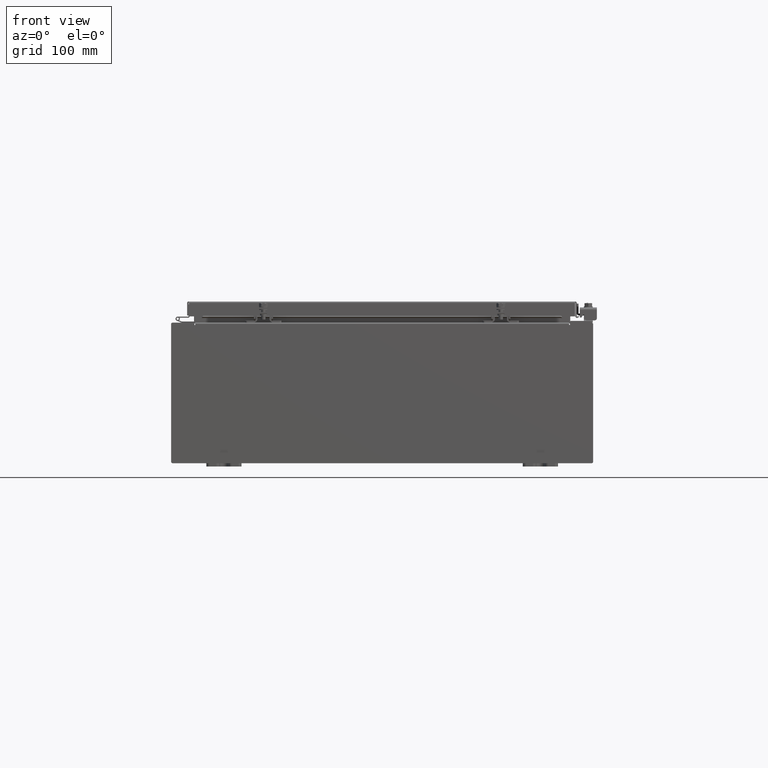
[diagram: clean part render]
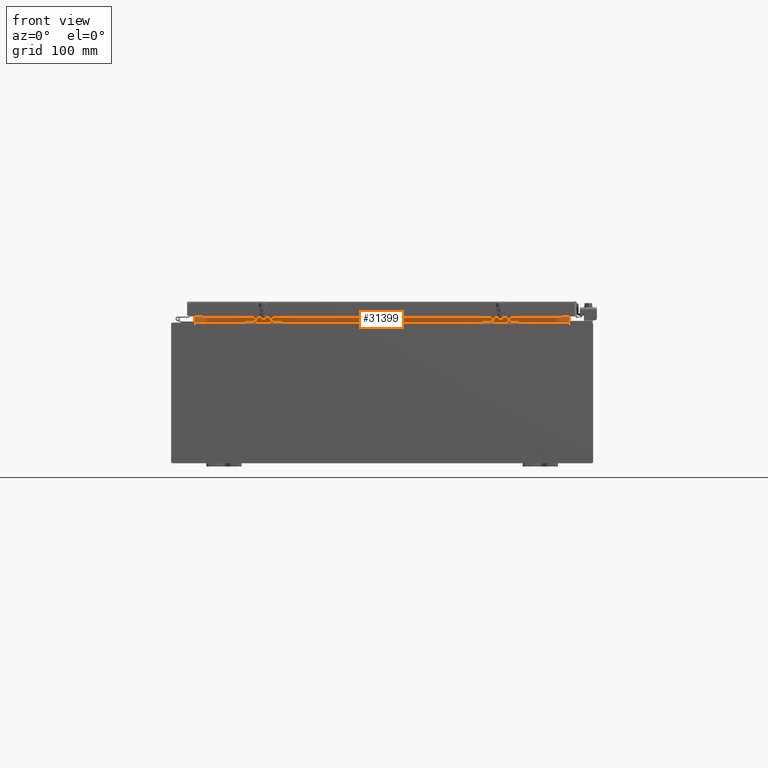
[diagram: same view with one face highlighted and labeled with its STEP entity id]
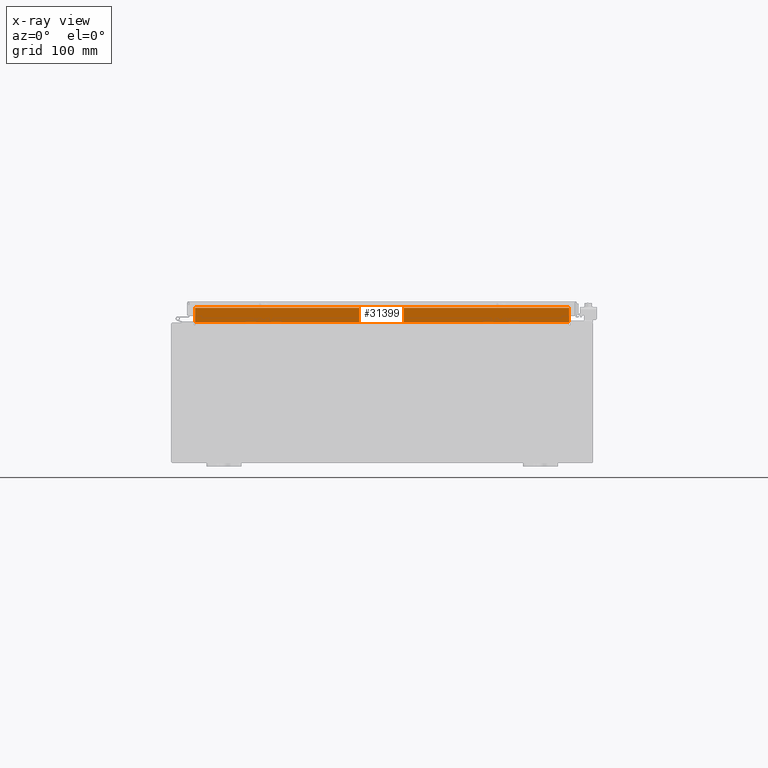
[diagram: x-ray of the same camera — body ghosted, the highlighted face saturated]
A machine part, front view. The second image highlights one B-rep face of the part: STEP entity #31399.
The next image is the same camera in x-ray: the body ghosted, the highlighted face saturated — about 0% of this face is hidden behind the body in this view.
In plain terms, the highlighted planar face has unit normal (0, -1, 0).
Its self-contained STEP definition (entity closure, byte-faithful):
#727 = DIRECTION ( 'NONE',  ( -0.0000000000000000000, -0.0000000000000000000, -1.000000000000000000 ) ) ;
#1626 = ORIENTED_EDGE ( 'NONE', *, *, #26661, .F. ) ;
#1840 = DIRECTION ( 'NONE',  ( 1.000000000000000000, 0.0000000000000000000, -2.568202152506545800E-017 ) ) ;
#3012 = AXIS2_PLACEMENT_3D ( 'NONE', #21171, #13123, #30596 ) ;
#3259 = ORIENTED_EDGE ( 'NONE', *, *, #14575, .F. ) ;
#4713 = DIRECTION ( 'NONE',  ( -0.0000000000000000000, -0.0000000000000000000, 1.000000000000000000 ) ) ;
#5661 = CARTESIAN_POINT ( 'NONE',  ( 10.63720000000000200, -1.300299999999999300, 4.837600000000003700 ) ) ;
#6301 = CARTESIAN_POINT ( 'NONE',  ( 10.63720000000000400, -1.300299999999999800, 4.013000000000003500 ) ) ;
#6758 = VECTOR ( 'NONE', #14429, 39.37007874015748100 ) ;
#7281 = CARTESIAN_POINT ( 'NONE',  ( -10.63720000000000200, -1.300299999999999800, 4.000000000000004400 ) ) ;
#7417 = VECTOR ( 'NONE', #727, 39.37007874015748100 ) ;
#8309 = LINE ( 'NONE', #7281, #7417 ) ;
#9847 = VECTOR ( 'NONE', #1840, 39.37007874015748100 ) ;
#10199 = EDGE_CURVE ( 'NONE', #28749, #15156, #8309, .T. ) ;
#13123 = DIRECTION ( 'NONE',  ( 0.0000000000000000000, 1.000000000000000000, 0.0000000000000000000 ) ) ;
#14429 = DIRECTION ( 'NONE',  ( -1.000000000000000000, -0.0000000000000000000, -0.0000000000000000000 ) ) ;
#14575 = EDGE_CURVE ( 'NONE', #15156, #28913, #32163, .T. ) ;
#14878 = ORIENTED_EDGE ( 'NONE', *, *, #10199, .F. ) ;
#15156 = VERTEX_POINT ( 'NONE', #35454 ) ;
#16030 = PLANE ( 'NONE',  #3012 ) ;
#16124 = CARTESIAN_POINT ( 'NONE',  ( 10.63720000000000200, -1.300299999999999800, 4.837600000000003700 ) ) ;
#19703 = CARTESIAN_POINT ( 'NONE',  ( -10.63720000000000200, -1.300299999999999800, 4.013000000000003500 ) ) ;
#21171 = CARTESIAN_POINT ( 'NONE',  ( 0.0000000000000000000, -1.300299999999999800, 0.0000000000000000000 ) ) ;
#22121 = LINE ( 'NONE', #5661, #6758 ) ;
#23901 = CARTESIAN_POINT ( 'NONE',  ( -10.63720000000000200, -1.300299999999999300, 4.837600000000003700 ) ) ;
#24969 = CARTESIAN_POINT ( 'NONE',  ( 10.63720000000000200, -1.300299999999999800, 4.925300000000004500 ) ) ;
#26185 = ORIENTED_EDGE ( 'NONE', *, *, #33766, .F. ) ;
#26661 = EDGE_CURVE ( 'NONE', #28913, #31048, #32082, .T. ) ;
#28749 = VERTEX_POINT ( 'NONE', #23901 ) ;
#28913 = VERTEX_POINT ( 'NONE', #6301 ) ;
#29228 = EDGE_LOOP ( 'NONE', ( #14878, #26185, #1626, #3259 ) ) ;
#29953 = FACE_OUTER_BOUND ( 'NONE', #29228, .T. ) ;
#30596 = DIRECTION ( 'NONE',  ( 0.0000000000000000000, -0.0000000000000000000, 1.000000000000000000 ) ) ;
#31048 = VERTEX_POINT ( 'NONE', #16124 ) ;
#31159 = VECTOR ( 'NONE', #4713, 39.37007874015748100 ) ;
#31399 = ADVANCED_FACE ( 'NONE', ( #29953 ), #16030, .T. ) ;
#32082 = LINE ( 'NONE', #24969, #31159 ) ;
#32163 = LINE ( 'NONE', #19703, #9847 ) ;
#33766 = EDGE_CURVE ( 'NONE', #31048, #28749, #22121, .T. ) ;
#35454 = CARTESIAN_POINT ( 'NONE',  ( -10.63720000000000400, -1.300299999999999800, 4.013000000000003500 ) ) ;